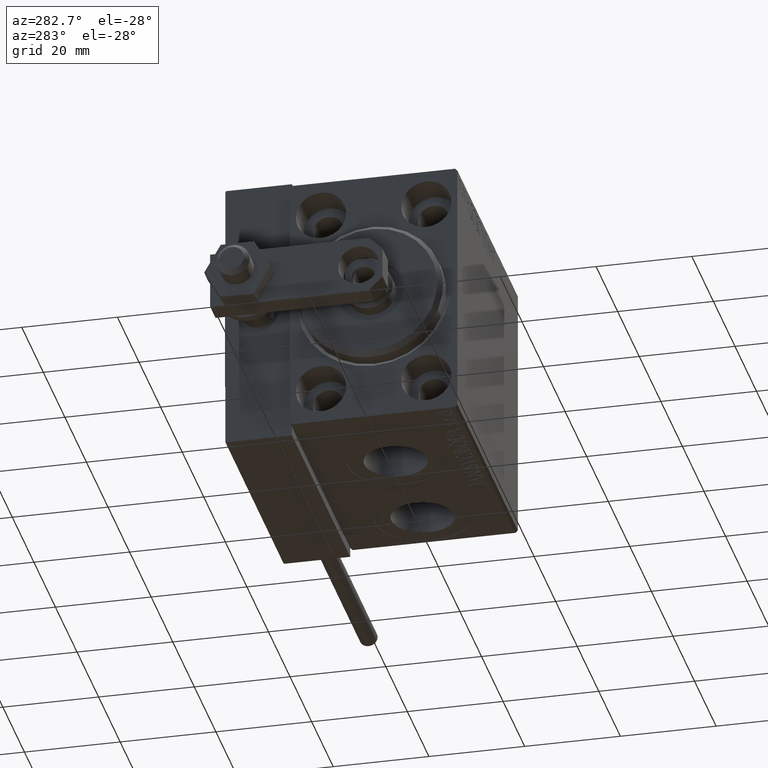
[diagram: clean part render]
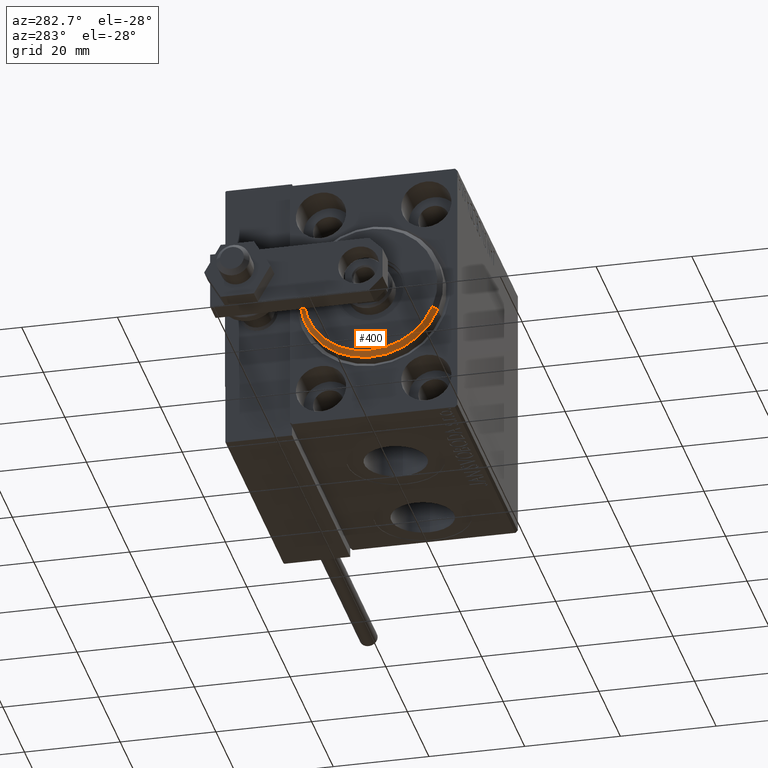
[diagram: same view with one face highlighted and labeled with its STEP entity id]
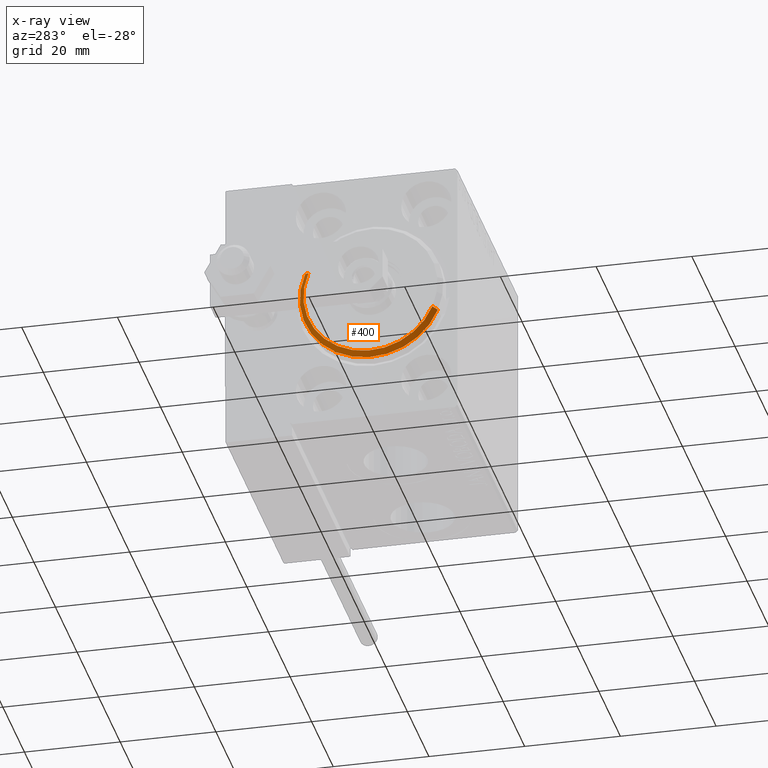
[diagram: x-ray of the same camera — body ghosted, the highlighted face saturated]
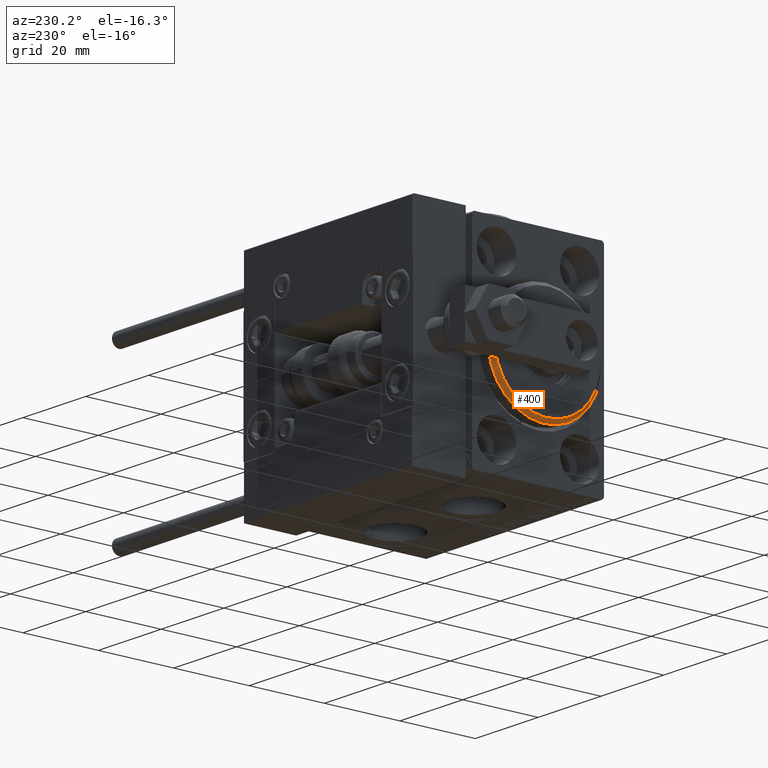
[diagram: same view with one face highlighted and labeled with its STEP entity id]
A machine part, auxiliary view. The second image highlights one B-rep face of the part: STEP entity #400.
The next image is the same camera in x-ray: the body ghosted, the highlighted face saturated — about 0% of this face is hidden behind the body in this view.
A second angle (auxiliary view) of the same face is appended — the face is thin or edge-on in the first view.
In plain terms, the highlighted conical surface has half-angle 45 deg.
Its self-contained STEP definition (entity closure, byte-faithful):
#253 = VERTEX_POINT ( 'NONE', #29733 ) ;
#400 = ADVANCED_FACE ( 'NONE', ( #48976 ), #46289, .T. ) ;
#1358 = VERTEX_POINT ( 'NONE', #1361 ) ;
#1361 = CARTESIAN_POINT ( 'NONE',  ( 1.999999999999995781, 1.836970198721029589E-15, -15.00000000000000000 ) ) ;
#4231 = CIRCLE ( 'NONE', #39995, 13.99999999999999645 ) ;
#7893 = DIRECTION ( 'NONE',  ( -0.7071067811865482389, 8.659560562354926695E-17, -0.7071067811865469066 ) ) ;
#8277 = EDGE_LOOP ( 'NONE', ( #37742, #17617, #37657, #30885 ) ) ;
#8597 = CARTESIAN_POINT ( 'NONE',  ( 3.000000000000000000, 0.000000000000000000, 0.000000000000000000 ) ) ;
#11777 = CARTESIAN_POINT ( 'NONE',  ( 3.000000000000000000, 0.000000000000000000, 13.99999999999999645 ) ) ;
#13752 = EDGE_CURVE ( 'NONE', #34374, #1358, #35832, .T. ) ;
#14245 = DIRECTION ( 'NONE',  ( 0.000000000000000000, 0.000000000000000000, -1.000000000000000000 ) ) ;
#15193 = LINE ( 'NONE', #38652, #35979 ) ;
#16998 = EDGE_CURVE ( 'NONE', #253, #18632, #4231, .T. ) ;
#17617 = ORIENTED_EDGE ( 'NONE', *, *, #27654, .T. ) ;
#18350 = AXIS2_PLACEMENT_3D ( 'NONE', #43236, #35162, #23184 ) ;
#18632 = VERTEX_POINT ( 'NONE', #11777 ) ;
#20329 = EDGE_CURVE ( 'NONE', #18632, #34374, #15193, .T. ) ;
#21102 = DIRECTION ( 'NONE',  ( -1.000000000000000000, 0.000000000000000000, 0.000000000000000000 ) ) ;
#22339 = CARTESIAN_POINT ( 'NONE',  ( 3.000000000000000000, 0.000000000000000000, 0.000000000000000000 ) ) ;
#23184 = DIRECTION ( 'NONE',  ( 0.000000000000000000, 0.000000000000000000, -1.000000000000000000 ) ) ;
#23792 = LINE ( 'NONE', #38889, #45217 ) ;
#25516 = CARTESIAN_POINT ( 'NONE',  ( 1.999999999999995781, 0.000000000000000000, 15.00000000000000000 ) ) ;
#27654 = EDGE_CURVE ( 'NONE', #253, #1358, #23792, .T. ) ;
#28907 = DIRECTION ( 'NONE',  ( 0.000000000000000000, 0.000000000000000000, 1.000000000000000000 ) ) ;
#29733 = CARTESIAN_POINT ( 'NONE',  ( 3.000000000000000000, 1.775737858763662015E-15, -13.99999999999999645 ) ) ;
#30885 = ORIENTED_EDGE ( 'NONE', *, *, #20329, .F. ) ;
#32992 = AXIS2_PLACEMENT_3D ( 'NONE', #8597, #21102, #28907 ) ;
#34238 = DIRECTION ( 'NONE',  ( -0.7071067811865482389, 0.000000000000000000, 0.7071067811865469066 ) ) ;
#34374 = VERTEX_POINT ( 'NONE', #25516 ) ;
#35162 = DIRECTION ( 'NONE',  ( -1.000000000000000000, 0.000000000000000000, 0.000000000000000000 ) ) ;
#35832 = CIRCLE ( 'NONE', #18350, 15.00000000000000000 ) ;
#35979 = VECTOR ( 'NONE', #34238, 999.9999999999998863 ) ;
#37657 = ORIENTED_EDGE ( 'NONE', *, *, #13752, .F. ) ;
#37742 = ORIENTED_EDGE ( 'NONE', *, *, #16998, .F. ) ;
#38652 = CARTESIAN_POINT ( 'NONE',  ( 3.000000000000000000, 0.000000000000000000, 13.99999999999999645 ) ) ;
#38889 = CARTESIAN_POINT ( 'NONE',  ( 3.000000000000000000, 1.714505518806294244E-15, -13.99999999999999645 ) ) ;
#39995 = AXIS2_PLACEMENT_3D ( 'NONE', #22339, #45539, #14245 ) ;
#43236 = CARTESIAN_POINT ( 'NONE',  ( 1.999999999999995781, 0.000000000000000000, 0.000000000000000000 ) ) ;
#45217 = VECTOR ( 'NONE', #7893, 999.9999999999998863 ) ;
#45539 = DIRECTION ( 'NONE',  ( 1.000000000000000000, -0.000000000000000000, 0.000000000000000000 ) ) ;
#46289 = CONICAL_SURFACE ( 'NONE', #32992, 13.99999999999999645, 0.7853981633974473908 ) ;
#48976 = FACE_OUTER_BOUND ( 'NONE', #8277, .T. ) ;